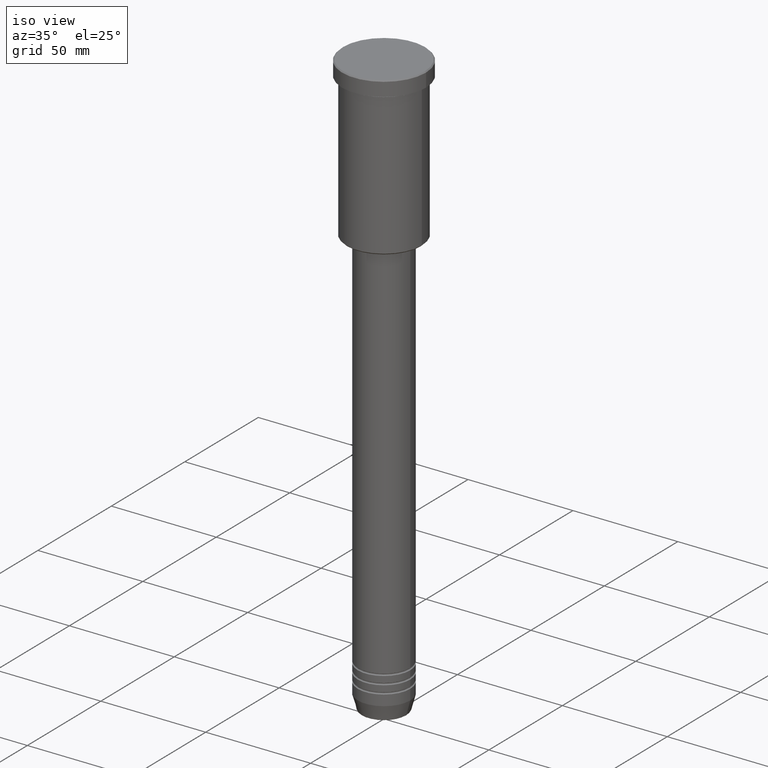
[diagram: clean part render]
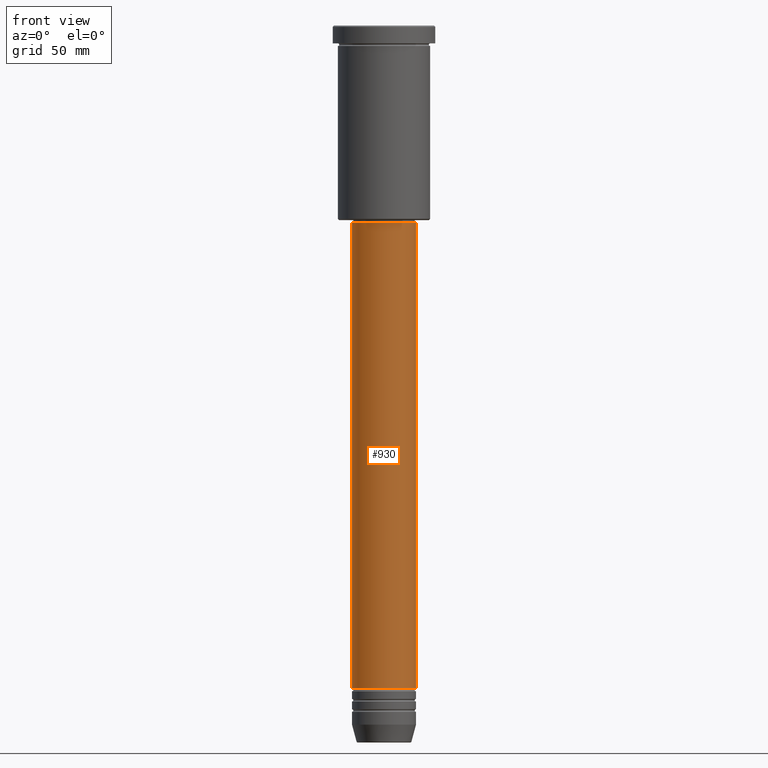
[diagram: tour spotlight — one face highlighted and labeled with its STEP entity id]
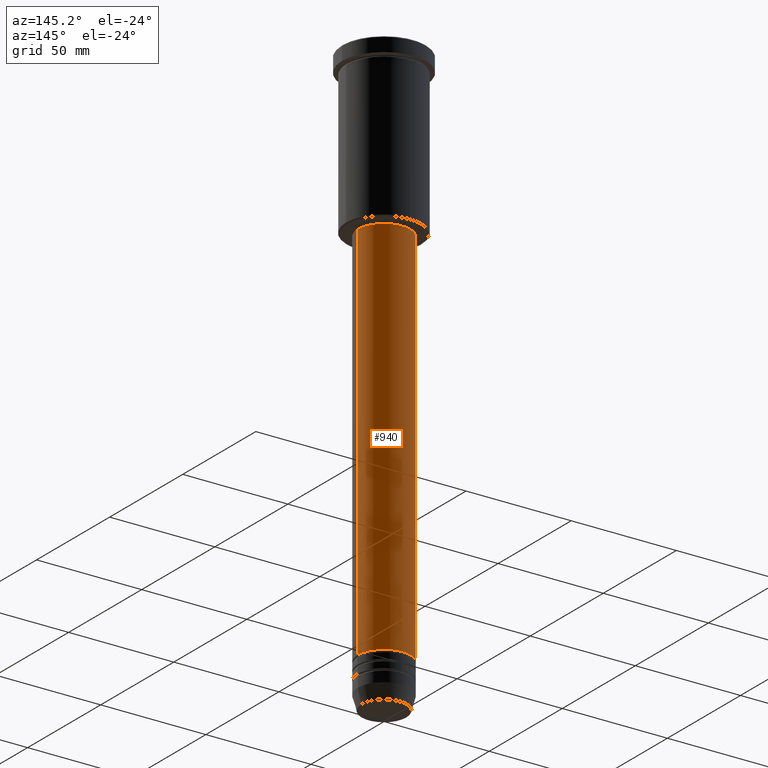
[diagram: tour spotlight — one face highlighted and labeled with its STEP entity id]
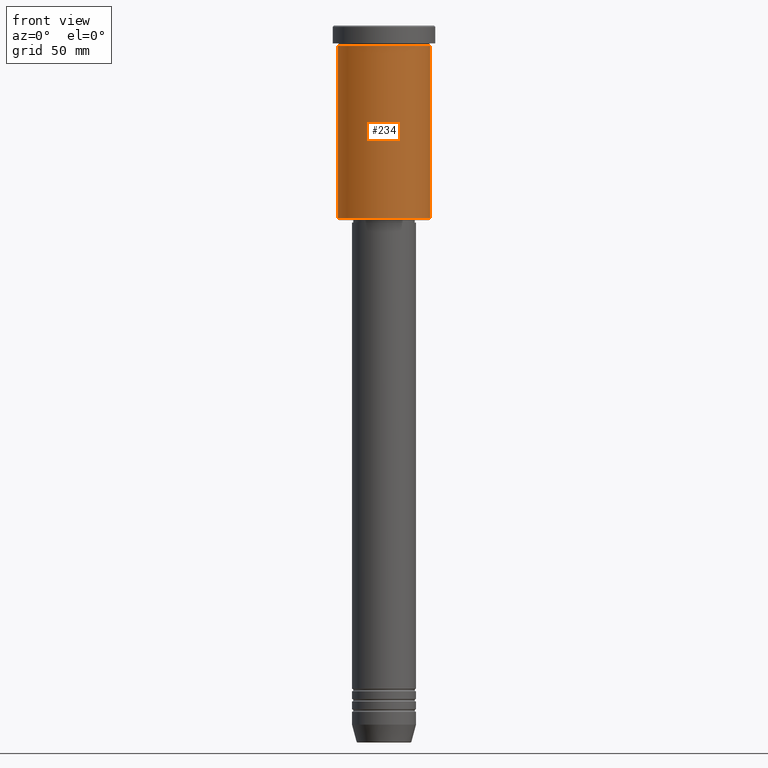
[diagram: tour spotlight — one face highlighted and labeled with its STEP entity id]
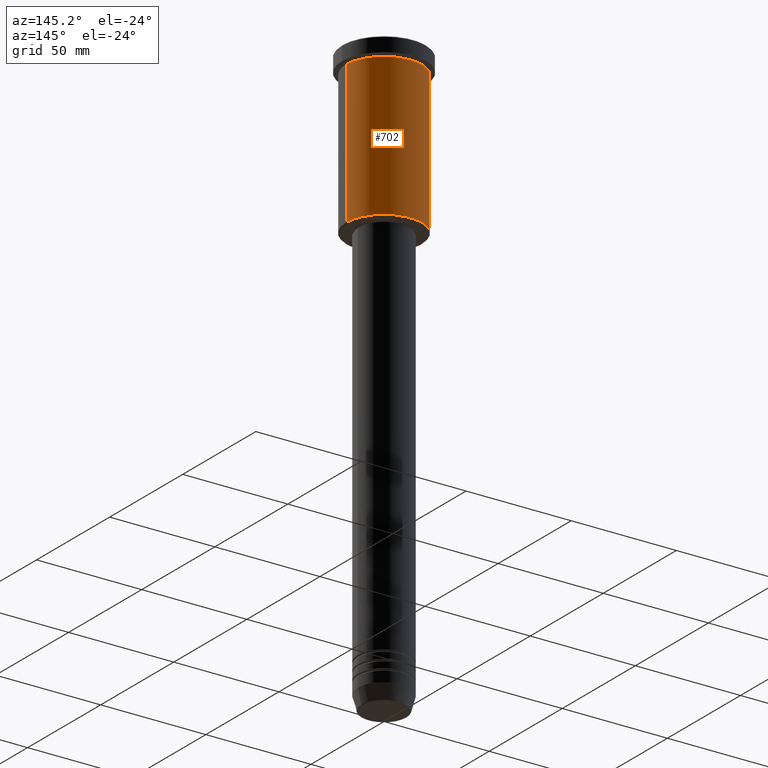
[diagram: tour spotlight — one face highlighted and labeled with its STEP entity id]
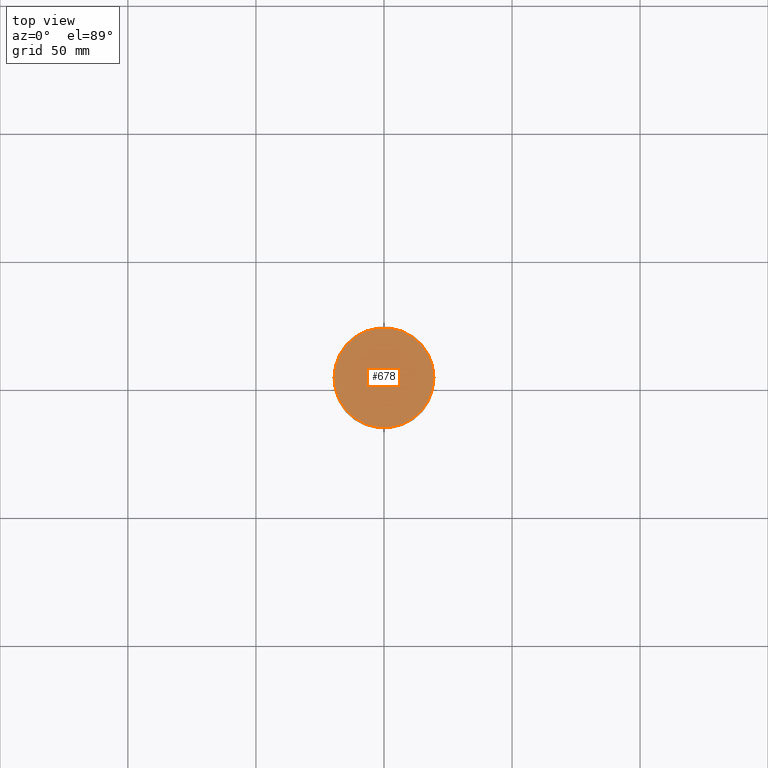
[diagram: tour spotlight — one face highlighted and labeled with its STEP entity id]
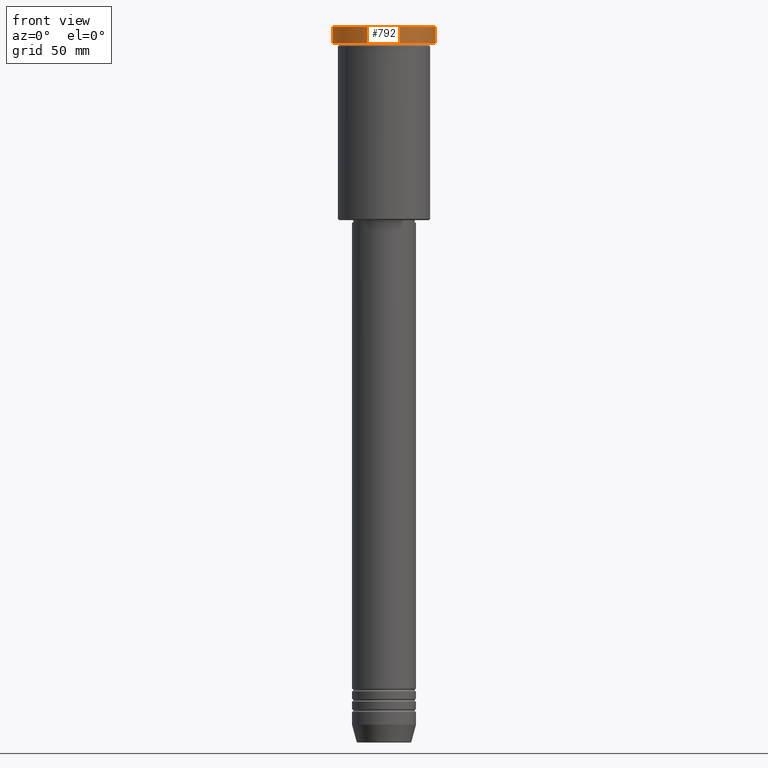
[diagram: tour spotlight — one face highlighted and labeled with its STEP entity id]
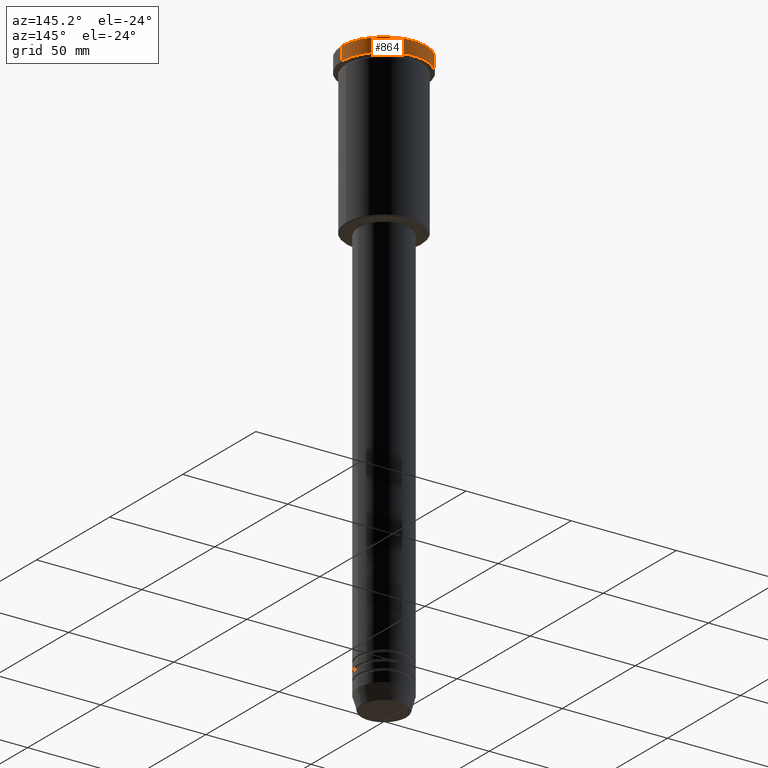
[diagram: tour spotlight — one face highlighted and labeled with its STEP entity id]
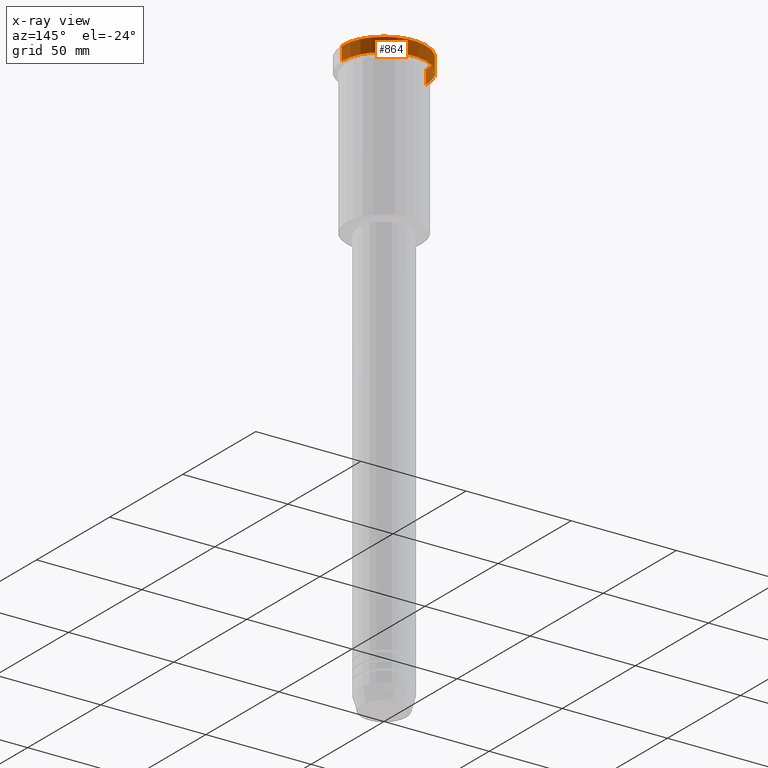
[diagram: x-ray of the same camera — body ghosted, this tour face saturated]
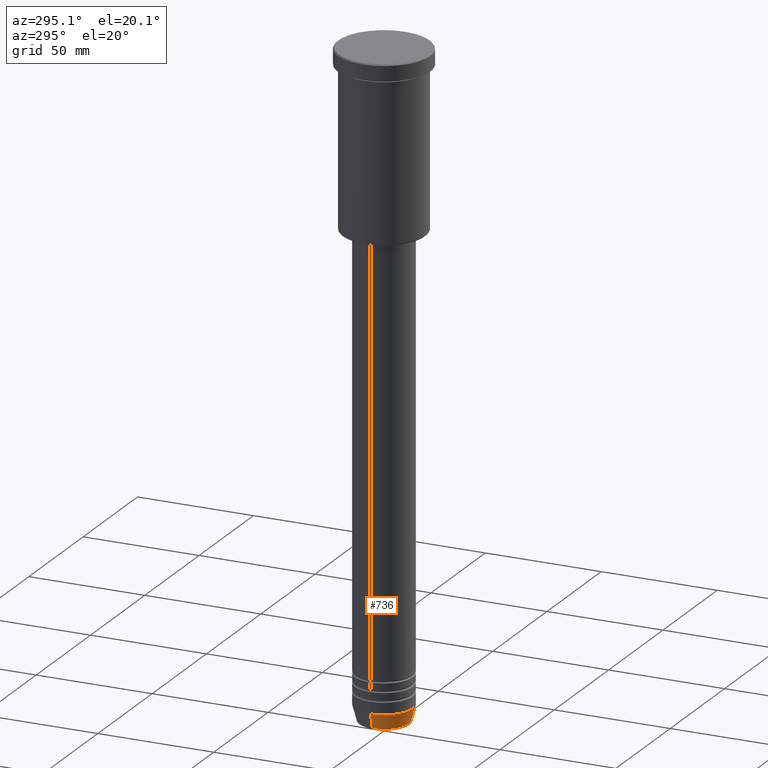
[diagram: tour spotlight — one face highlighted and labeled with its STEP entity id]
A machine part: a face-by-face anatomy tour. The part has 43 B-rep faces; the first image is the clean iso view, then the 8 largest visible faces are spotlighted one at a time (largest first), each with its STEP entity span.

Face 1 — front view, entity #930. In plain terms, the highlighted cylindrical surface (edge-blend (fillet) strip) has radius 12.5 mm, axis along (-0, -0, 1).
Definition (entity closure, byte-faithful):
#9 = DIRECTION ( 'NONE',  ( -0.000000000000000000, -0.000000000000000000, 1.000000000000000000 ) ) ;
#16 = VERTEX_POINT ( 'NONE', #72 ) ;
#55 = EDGE_CURVE ( 'NONE', #16, #1054, #1085, .T. ) ;
#72 = CARTESIAN_POINT ( 'NONE',  ( -12.50000000000000000, 1.530808498934191521E-15, -77.00000000000001421 ) ) ;
#89 = ORIENTED_EDGE ( 'NONE', *, *, #605, .T. ) ;
#116 = VECTOR ( 'NONE', #902, 1000.000000000000000 ) ;
#180 = CARTESIAN_POINT ( 'NONE',  ( 12.50000000000000000, 0.000000000000000000, 0.000000000000000000 ) ) ;
#183 = CARTESIAN_POINT ( 'NONE',  ( 0.000000000000000000, 0.000000000000000000, 0.000000000000000000 ) ) ;
#257 = EDGE_CURVE ( 'NONE', #1037, #16, #1000, .T. ) ;
#267 = DIRECTION ( 'NONE',  ( -0.000000000000000000, -0.000000000000000000, 1.000000000000000000 ) ) ;
#281 = ORIENTED_EDGE ( 'NONE', *, *, #257, .F. ) ;
#293 = EDGE_CURVE ( 'NONE', #938, #1054, #458, .T. ) ;
#356 = DIRECTION ( 'NONE',  ( 1.000000000000000000, 0.000000000000000000, 0.000000000000000000 ) ) ;
#377 = CARTESIAN_POINT ( 'NONE',  ( 0.000000000000000000, 0.000000000000000000, -259.0000000000000000 ) ) ;
#417 = DIRECTION ( 'NONE',  ( -0.000000000000000000, -0.000000000000000000, 1.000000000000000000 ) ) ;
#458 = LINE ( 'NONE', #180, #116 ) ;
#504 = CARTESIAN_POINT ( 'NONE',  ( 12.50000000000000000, 0.000000000000000000, -77.00000000000001421 ) ) ;
#530 = CARTESIAN_POINT ( 'NONE',  ( -12.50000000000000000, 1.530808498934191521E-15, -259.0000000000000000 ) ) ;
#600 = CIRCLE ( 'NONE', #1088, 12.50000000000000000 ) ;
#605 = EDGE_CURVE ( 'NONE', #1037, #938, #600, .T. ) ;
#615 = VECTOR ( 'NONE', #267, 1000.000000000000000 ) ;
#632 = CYLINDRICAL_SURFACE ( 'NONE', #854, 12.50000000000000000 ) ;
#739 = DIRECTION ( 'NONE',  ( 1.000000000000000000, 0.000000000000000000, 0.000000000000000000 ) ) ;
#833 = AXIS2_PLACEMENT_3D ( 'NONE', #976, #417, #739 ) ;
#854 = AXIS2_PLACEMENT_3D ( 'NONE', #183, #913, #1015 ) ;
#896 = ORIENTED_EDGE ( 'NONE', *, *, #55, .F. ) ;
#902 = DIRECTION ( 'NONE',  ( -0.000000000000000000, -0.000000000000000000, 1.000000000000000000 ) ) ;
#913 = DIRECTION ( 'NONE',  ( -0.000000000000000000, -0.000000000000000000, 1.000000000000000000 ) ) ;
#930 = ADVANCED_FACE ( 'NONE', ( #1007 ), #632, .T. ) ;
#938 = VERTEX_POINT ( 'NONE', #954 ) ;
#954 = CARTESIAN_POINT ( 'NONE',  ( 12.50000000000000000, 0.000000000000000000, -259.0000000000000000 ) ) ;
#976 = CARTESIAN_POINT ( 'NONE',  ( 0.000000000000000000, 0.000000000000000000, -77.00000000000001421 ) ) ;
#1000 = LINE ( 'NONE', #1181, #615 ) ;
#1007 = FACE_OUTER_BOUND ( 'NONE', #1119, .T. ) ;
#1015 = DIRECTION ( 'NONE',  ( 1.000000000000000000, 0.000000000000000000, 0.000000000000000000 ) ) ;
#1037 = VERTEX_POINT ( 'NONE', #530 ) ;
#1054 = VERTEX_POINT ( 'NONE', #504 ) ;
#1085 = CIRCLE ( 'NONE', #833, 12.50000000000000000 ) ;
#1088 = AXIS2_PLACEMENT_3D ( 'NONE', #377, #9, #356 ) ;
#1101 = ORIENTED_EDGE ( 'NONE', *, *, #293, .T. ) ;
#1119 = EDGE_LOOP ( 'NONE', ( #281, #89, #1101, #896 ) ) ;
#1181 = CARTESIAN_POINT ( 'NONE',  ( -12.50000000000000000, 1.530808498934191521E-15, 0.000000000000000000 ) ) ;

Face 2 — auxiliary view, entity #940. In plain terms, the highlighted cylindrical surface (edge-blend (fillet) strip) has radius 12.5 mm, axis along (-0, -0, 1).
Definition (entity closure, byte-faithful):
#16 = VERTEX_POINT ( 'NONE', #72 ) ;
#39 = DIRECTION ( 'NONE',  ( -0.000000000000000000, -0.000000000000000000, 1.000000000000000000 ) ) ;
#46 = EDGE_CURVE ( 'NONE', #938, #1037, #484, .T. ) ;
#68 = DIRECTION ( 'NONE',  ( -0.000000000000000000, -0.000000000000000000, 1.000000000000000000 ) ) ;
#72 = CARTESIAN_POINT ( 'NONE',  ( -12.50000000000000000, 1.530808498934191521E-15, -77.00000000000001421 ) ) ;
#99 = DIRECTION ( 'NONE',  ( 1.000000000000000000, 0.000000000000000000, 0.000000000000000000 ) ) ;
#116 = VECTOR ( 'NONE', #902, 1000.000000000000000 ) ;
#123 = CYLINDRICAL_SURFACE ( 'NONE', #233, 12.50000000000000000 ) ;
#137 = FACE_OUTER_BOUND ( 'NONE', #935, .T. ) ;
#180 = CARTESIAN_POINT ( 'NONE',  ( 12.50000000000000000, 0.000000000000000000, 0.000000000000000000 ) ) ;
#233 = AXIS2_PLACEMENT_3D ( 'NONE', #1139, #39, #1042 ) ;
#257 = EDGE_CURVE ( 'NONE', #1037, #16, #1000, .T. ) ;
#267 = DIRECTION ( 'NONE',  ( -0.000000000000000000, -0.000000000000000000, 1.000000000000000000 ) ) ;
#271 = ORIENTED_EDGE ( 'NONE', *, *, #257, .T. ) ;
#293 = EDGE_CURVE ( 'NONE', #938, #1054, #458, .T. ) ;
#312 = ORIENTED_EDGE ( 'NONE', *, *, #46, .T. ) ;
#454 = CARTESIAN_POINT ( 'NONE',  ( 0.000000000000000000, 0.000000000000000000, -77.00000000000001421 ) ) ;
#458 = LINE ( 'NONE', #180, #116 ) ;
#484 = CIRCLE ( 'NONE', #810, 12.50000000000000000 ) ;
#504 = CARTESIAN_POINT ( 'NONE',  ( 12.50000000000000000, 0.000000000000000000, -77.00000000000001421 ) ) ;
#530 = CARTESIAN_POINT ( 'NONE',  ( -12.50000000000000000, 1.530808498934191521E-15, -259.0000000000000000 ) ) ;
#592 = EDGE_CURVE ( 'NONE', #1054, #16, #658, .T. ) ;
#601 = DIRECTION ( 'NONE',  ( 1.000000000000000000, 0.000000000000000000, 0.000000000000000000 ) ) ;
#615 = VECTOR ( 'NONE', #267, 1000.000000000000000 ) ;
#658 = CIRCLE ( 'NONE', #1180, 12.50000000000000000 ) ;
#810 = AXIS2_PLACEMENT_3D ( 'NONE', #1065, #68, #601 ) ;
#902 = DIRECTION ( 'NONE',  ( -0.000000000000000000, -0.000000000000000000, 1.000000000000000000 ) ) ;
#928 = ORIENTED_EDGE ( 'NONE', *, *, #293, .F. ) ;
#935 = EDGE_LOOP ( 'NONE', ( #312, #271, #1059, #928 ) ) ;
#938 = VERTEX_POINT ( 'NONE', #954 ) ;
#940 = ADVANCED_FACE ( 'NONE', ( #137 ), #123, .T. ) ;
#954 = CARTESIAN_POINT ( 'NONE',  ( 12.50000000000000000, 0.000000000000000000, -259.0000000000000000 ) ) ;
#1000 = LINE ( 'NONE', #1181, #615 ) ;
#1022 = DIRECTION ( 'NONE',  ( -0.000000000000000000, -0.000000000000000000, 1.000000000000000000 ) ) ;
#1037 = VERTEX_POINT ( 'NONE', #530 ) ;
#1042 = DIRECTION ( 'NONE',  ( 1.000000000000000000, 0.000000000000000000, 0.000000000000000000 ) ) ;
#1054 = VERTEX_POINT ( 'NONE', #504 ) ;
#1059 = ORIENTED_EDGE ( 'NONE', *, *, #592, .F. ) ;
#1065 = CARTESIAN_POINT ( 'NONE',  ( 0.000000000000000000, 0.000000000000000000, -259.0000000000000000 ) ) ;
#1139 = CARTESIAN_POINT ( 'NONE',  ( 0.000000000000000000, 0.000000000000000000, 0.000000000000000000 ) ) ;
#1180 = AXIS2_PLACEMENT_3D ( 'NONE', #454, #1022, #99 ) ;
#1181 = CARTESIAN_POINT ( 'NONE',  ( -12.50000000000000000, 1.530808498934191521E-15, 0.000000000000000000 ) ) ;

Face 3 — front view, entity #234. In plain terms, the highlighted cylindrical surface (partial cylindrical patch) has radius 18 mm, axis along (-0, -0, 1).
Definition (entity closure, byte-faithful):
#27 = DIRECTION ( 'NONE',  ( -0.000000000000000000, -0.000000000000000000, 1.000000000000000000 ) ) ;
#41 = ORIENTED_EDGE ( 'NONE', *, *, #122, .F. ) ;
#52 = LINE ( 'NONE', #651, #1102 ) ;
#122 = EDGE_CURVE ( 'NONE', #1121, #653, #730, .T. ) ;
#143 = CYLINDRICAL_SURFACE ( 'NONE', #635, 18.00000000000000000 ) ;
#209 = EDGE_CURVE ( 'NONE', #829, #518, #52, .T. ) ;
#234 = ADVANCED_FACE ( 'NONE', ( #959 ), #143, .T. ) ;
#238 = CIRCLE ( 'NONE', #472, 18.00000000000000000 ) ;
#289 = DIRECTION ( 'NONE',  ( -0.000000000000000000, -0.000000000000000000, 1.000000000000000000 ) ) ;
#292 = DIRECTION ( 'NONE',  ( 1.000000000000000000, 0.000000000000000000, 0.000000000000000000 ) ) ;
#310 = AXIS2_PLACEMENT_3D ( 'NONE', #743, #936, #292 ) ;
#418 = DIRECTION ( 'NONE',  ( -0.000000000000000000, -0.000000000000000000, 1.000000000000000000 ) ) ;
#441 = ORIENTED_EDGE ( 'NONE', *, *, #577, .F. ) ;
#451 = DIRECTION ( 'NONE',  ( 1.000000000000000000, 0.000000000000000000, 0.000000000000000000 ) ) ;
#472 = AXIS2_PLACEMENT_3D ( 'NONE', #519, #418, #996 ) ;
#497 = CARTESIAN_POINT ( 'NONE',  ( 0.000000000000000000, 0.000000000000000000, 0.000000000000000000 ) ) ;
#518 = VERTEX_POINT ( 'NONE', #754 ) ;
#519 = CARTESIAN_POINT ( 'NONE',  ( 0.000000000000000000, 0.000000000000000000, -75.50000000000002842 ) ) ;
#577 = EDGE_CURVE ( 'NONE', #653, #518, #796, .T. ) ;
#635 = AXIS2_PLACEMENT_3D ( 'NONE', #497, #289, #451 ) ;
#646 = ORIENTED_EDGE ( 'NONE', *, *, #788, .T. ) ;
#651 = CARTESIAN_POINT ( 'NONE',  ( 18.00000000000000000, 0.000000000000000000, 0.000000000000000000 ) ) ;
#653 = VERTEX_POINT ( 'NONE', #862 ) ;
#655 = VECTOR ( 'NONE', #27, 1000.000000000000000 ) ;
#675 = DIRECTION ( 'NONE',  ( -0.000000000000000000, -0.000000000000000000, 1.000000000000000000 ) ) ;
#704 = CARTESIAN_POINT ( 'NONE',  ( -18.00000000000000000, 2.204364238465235428E-15, -75.50000000000002842 ) ) ;
#717 = CARTESIAN_POINT ( 'NONE',  ( 18.00000000000000000, 0.000000000000000000, -75.50000000000002842 ) ) ;
#730 = LINE ( 'NONE', #834, #655 ) ;
#743 = CARTESIAN_POINT ( 'NONE',  ( 0.000000000000000000, 0.000000000000000000, -7.999999999999996447 ) ) ;
#754 = CARTESIAN_POINT ( 'NONE',  ( 18.00000000000000000, 0.000000000000000000, -7.999999999999996447 ) ) ;
#788 = EDGE_CURVE ( 'NONE', #1121, #829, #238, .T. ) ;
#796 = CIRCLE ( 'NONE', #310, 18.00000000000000000 ) ;
#829 = VERTEX_POINT ( 'NONE', #717 ) ;
#834 = CARTESIAN_POINT ( 'NONE',  ( -18.00000000000000000, 2.204364238465235428E-15, 0.000000000000000000 ) ) ;
#840 = ORIENTED_EDGE ( 'NONE', *, *, #209, .T. ) ;
#862 = CARTESIAN_POINT ( 'NONE',  ( -18.00000000000000000, 2.204364238465235428E-15, -7.999999999999996447 ) ) ;
#936 = DIRECTION ( 'NONE',  ( -0.000000000000000000, -0.000000000000000000, 1.000000000000000000 ) ) ;
#959 = FACE_OUTER_BOUND ( 'NONE', #1004, .T. ) ;
#996 = DIRECTION ( 'NONE',  ( -1.000000000000000000, 0.000000000000000000, 0.000000000000000000 ) ) ;
#1004 = EDGE_LOOP ( 'NONE', ( #41, #646, #840, #441 ) ) ;
#1102 = VECTOR ( 'NONE', #675, 1000.000000000000000 ) ;
#1121 = VERTEX_POINT ( 'NONE', #704 ) ;

Face 4 — auxiliary view, entity #702. In plain terms, the highlighted cylindrical surface (partial cylindrical patch) has radius 18 mm, axis along (-0, -0, 1).
Definition (entity closure, byte-faithful):
#27 = DIRECTION ( 'NONE',  ( -0.000000000000000000, -0.000000000000000000, 1.000000000000000000 ) ) ;
#52 = LINE ( 'NONE', #651, #1102 ) ;
#122 = EDGE_CURVE ( 'NONE', #1121, #653, #730, .T. ) ;
#209 = EDGE_CURVE ( 'NONE', #829, #518, #52, .T. ) ;
#223 = EDGE_LOOP ( 'NONE', ( #611, #756, #764, #252 ) ) ;
#252 = ORIENTED_EDGE ( 'NONE', *, *, #209, .F. ) ;
#301 = FACE_OUTER_BOUND ( 'NONE', #223, .T. ) ;
#311 = CARTESIAN_POINT ( 'NONE',  ( 0.000000000000000000, 0.000000000000000000, 0.000000000000000000 ) ) ;
#332 = CARTESIAN_POINT ( 'NONE',  ( 0.000000000000000000, 0.000000000000000000, -75.50000000000002842 ) ) ;
#363 = DIRECTION ( 'NONE',  ( -0.000000000000000000, -0.000000000000000000, 1.000000000000000000 ) ) ;
#398 = CIRCLE ( 'NONE', #865, 18.00000000000000000 ) ;
#403 = CIRCLE ( 'NONE', #505, 18.00000000000000000 ) ;
#469 = DIRECTION ( 'NONE',  ( 1.000000000000000000, 0.000000000000000000, 0.000000000000000000 ) ) ;
#505 = AXIS2_PLACEMENT_3D ( 'NONE', #1108, #363, #469 ) ;
#518 = VERTEX_POINT ( 'NONE', #754 ) ;
#559 = EDGE_CURVE ( 'NONE', #518, #653, #403, .T. ) ;
#611 = ORIENTED_EDGE ( 'NONE', *, *, #1028, .T. ) ;
#613 = DIRECTION ( 'NONE',  ( -1.000000000000000000, 0.000000000000000000, 0.000000000000000000 ) ) ;
#651 = CARTESIAN_POINT ( 'NONE',  ( 18.00000000000000000, 0.000000000000000000, 0.000000000000000000 ) ) ;
#653 = VERTEX_POINT ( 'NONE', #862 ) ;
#655 = VECTOR ( 'NONE', #27, 1000.000000000000000 ) ;
#675 = DIRECTION ( 'NONE',  ( -0.000000000000000000, -0.000000000000000000, 1.000000000000000000 ) ) ;
#702 = ADVANCED_FACE ( 'NONE', ( #301 ), #961, .T. ) ;
#704 = CARTESIAN_POINT ( 'NONE',  ( -18.00000000000000000, 2.204364238465235428E-15, -75.50000000000002842 ) ) ;
#717 = CARTESIAN_POINT ( 'NONE',  ( 18.00000000000000000, 0.000000000000000000, -75.50000000000002842 ) ) ;
#730 = LINE ( 'NONE', #834, #655 ) ;
#754 = CARTESIAN_POINT ( 'NONE',  ( 18.00000000000000000, 0.000000000000000000, -7.999999999999996447 ) ) ;
#756 = ORIENTED_EDGE ( 'NONE', *, *, #122, .T. ) ;
#764 = ORIENTED_EDGE ( 'NONE', *, *, #559, .F. ) ;
#814 = AXIS2_PLACEMENT_3D ( 'NONE', #311, #1038, #868 ) ;
#829 = VERTEX_POINT ( 'NONE', #717 ) ;
#834 = CARTESIAN_POINT ( 'NONE',  ( -18.00000000000000000, 2.204364238465235428E-15, 0.000000000000000000 ) ) ;
#862 = CARTESIAN_POINT ( 'NONE',  ( -18.00000000000000000, 2.204364238465235428E-15, -7.999999999999996447 ) ) ;
#865 = AXIS2_PLACEMENT_3D ( 'NONE', #332, #1081, #613 ) ;
#868 = DIRECTION ( 'NONE',  ( 1.000000000000000000, 0.000000000000000000, 0.000000000000000000 ) ) ;
#961 = CYLINDRICAL_SURFACE ( 'NONE', #814, 18.00000000000000000 ) ;
#1028 = EDGE_CURVE ( 'NONE', #829, #1121, #398, .T. ) ;
#1038 = DIRECTION ( 'NONE',  ( -0.000000000000000000, -0.000000000000000000, 1.000000000000000000 ) ) ;
#1081 = DIRECTION ( 'NONE',  ( -0.000000000000000000, -0.000000000000000000, 1.000000000000000000 ) ) ;
#1102 = VECTOR ( 'NONE', #675, 1000.000000000000000 ) ;
#1108 = CARTESIAN_POINT ( 'NONE',  ( 0.000000000000000000, 0.000000000000000000, -7.999999999999996447 ) ) ;
#1121 = VERTEX_POINT ( 'NONE', #704 ) ;

Face 5 — top view, entity #678. In plain terms, the highlighted planar face has unit normal (0, -0, 1).
Definition (entity closure, byte-faithful):
#51 = ORIENTED_EDGE ( 'NONE', *, *, #990, .T. ) ;
#109 = AXIS2_PLACEMENT_3D ( 'NONE', #326, #415, #1153 ) ;
#176 = CARTESIAN_POINT ( 'NONE',  ( 0.000000000000000000, 0.000000000000000000, 0.000000000000000000 ) ) ;
#242 = CARTESIAN_POINT ( 'NONE',  ( -19.50000000000004619, 0.000000000000000000, 0.000000000000000000 ) ) ;
#264 = VERTEX_POINT ( 'NONE', #345 ) ;
#278 = EDGE_CURVE ( 'NONE', #264, #1107, #364, .T. ) ;
#326 = CARTESIAN_POINT ( 'NONE',  ( 0.000000000000000000, 0.000000000000000000, 0.000000000000000000 ) ) ;
#343 = ORIENTED_EDGE ( 'NONE', *, *, #278, .T. ) ;
#345 = CARTESIAN_POINT ( 'NONE',  ( 19.50000000000004619, 2.418677428316025487E-15, 0.000000000000000000 ) ) ;
#364 = CIRCLE ( 'NONE', #546, 19.50000000000004619 ) ;
#393 = DIRECTION ( 'NONE',  ( 0.000000000000000000, -0.000000000000000000, 1.000000000000000000 ) ) ;
#415 = DIRECTION ( 'NONE',  ( -0.000000000000000000, -0.000000000000000000, 1.000000000000000000 ) ) ;
#506 = CARTESIAN_POINT ( 'NONE',  ( 0.000000000000000000, 0.000000000000000000, 0.000000000000000000 ) ) ;
#546 = AXIS2_PLACEMENT_3D ( 'NONE', #176, #555, #817 ) ;
#555 = DIRECTION ( 'NONE',  ( -0.000000000000000000, -0.000000000000000000, 1.000000000000000000 ) ) ;
#562 = EDGE_LOOP ( 'NONE', ( #51, #343 ) ) ;
#650 = CIRCLE ( 'NONE', #109, 19.50000000000004619 ) ;
#666 = FACE_OUTER_BOUND ( 'NONE', #562, .T. ) ;
#677 = PLANE ( 'NONE',  #718 ) ;
#678 = ADVANCED_FACE ( 'NONE', ( #666 ), #677, .T. ) ;
#718 = AXIS2_PLACEMENT_3D ( 'NONE', #506, #393, #1130 ) ;
#817 = DIRECTION ( 'NONE',  ( 1.000000000000000000, 0.000000000000000000, 0.000000000000000000 ) ) ;
#990 = EDGE_CURVE ( 'NONE', #1107, #264, #650, .T. ) ;
#1107 = VERTEX_POINT ( 'NONE', #242 ) ;
#1130 = DIRECTION ( 'NONE',  ( 1.000000000000000000, 0.000000000000000000, 0.000000000000000000 ) ) ;
#1153 = DIRECTION ( 'NONE',  ( 1.000000000000000000, 0.000000000000000000, 0.000000000000000000 ) ) ;

Face 6 — front view, entity #792. In plain terms, the highlighted cylindrical surface (partial cylindrical patch) has radius 20 mm, axis along (-0, -0, 1).
Definition (entity closure, byte-faithful):
#42 = DIRECTION ( 'NONE',  ( 1.000000000000000000, 0.000000000000000000, 0.000000000000000000 ) ) ;
#56 = DIRECTION ( 'NONE',  ( 0.000000000000000000, 0.000000000000000000, -1.000000000000000000 ) ) ;
#69 = EDGE_CURVE ( 'NONE', #193, #539, #625, .T. ) ;
#88 = CARTESIAN_POINT ( 'NONE',  ( 0.000000000000000000, 0.000000000000000000, 0.000000000000000000 ) ) ;
#94 = EDGE_LOOP ( 'NONE', ( #557, #516, #483, #636 ) ) ;
#118 = CARTESIAN_POINT ( 'NONE',  ( -20.00000000000000000, 2.449293598294706513E-15, 0.000000000000000000 ) ) ;
#193 = VERTEX_POINT ( 'NONE', #583 ) ;
#265 = CARTESIAN_POINT ( 'NONE',  ( -20.00000000000000000, 2.449293598294706513E-15, -0.4999999999999692468 ) ) ;
#296 = CIRCLE ( 'NONE', #950, 20.00000000000000000 ) ;
#330 = DIRECTION ( 'NONE',  ( -0.000000000000000000, -0.000000000000000000, 1.000000000000000000 ) ) ;
#344 = AXIS2_PLACEMENT_3D ( 'NONE', #626, #467, #1106 ) ;
#404 = EDGE_CURVE ( 'NONE', #1093, #809, #500, .T. ) ;
#410 = CARTESIAN_POINT ( 'NONE',  ( 20.00000000000000000, 0.000000000000000000, -0.4999999999999692468 ) ) ;
#413 = CARTESIAN_POINT ( 'NONE',  ( 20.00000000000000000, 0.000000000000000000, 0.000000000000000000 ) ) ;
#459 = DIRECTION ( 'NONE',  ( -0.000000000000000000, -0.000000000000000000, 1.000000000000000000 ) ) ;
#467 = DIRECTION ( 'NONE',  ( -0.000000000000000000, -0.000000000000000000, 1.000000000000000000 ) ) ;
#483 = ORIENTED_EDGE ( 'NONE', *, *, #404, .T. ) ;
#494 = CARTESIAN_POINT ( 'NONE',  ( 0.000000000000000000, 0.000000000000000000, -0.4999999999999692468 ) ) ;
#500 = LINE ( 'NONE', #413, #760 ) ;
#516 = ORIENTED_EDGE ( 'NONE', *, *, #897, .T. ) ;
#539 = VERTEX_POINT ( 'NONE', #265 ) ;
#557 = ORIENTED_EDGE ( 'NONE', *, *, #69, .F. ) ;
#583 = CARTESIAN_POINT ( 'NONE',  ( -20.00000000000000000, 2.449293598294706513E-15, -6.999999999999995559 ) ) ;
#620 = CYLINDRICAL_SURFACE ( 'NONE', #914, 20.00000000000000000 ) ;
#625 = LINE ( 'NONE', #118, #758 ) ;
#626 = CARTESIAN_POINT ( 'NONE',  ( 0.000000000000000000, 0.000000000000000000, -6.999999999999995559 ) ) ;
#636 = ORIENTED_EDGE ( 'NONE', *, *, #712, .T. ) ;
#707 = DIRECTION ( 'NONE',  ( 1.000000000000000000, 0.000000000000000000, 0.000000000000000000 ) ) ;
#712 = EDGE_CURVE ( 'NONE', #809, #539, #296, .T. ) ;
#758 = VECTOR ( 'NONE', #459, 1000.000000000000000 ) ;
#760 = VECTOR ( 'NONE', #330, 1000.000000000000000 ) ;
#792 = ADVANCED_FACE ( 'NONE', ( #805 ), #620, .T. ) ;
#795 = CARTESIAN_POINT ( 'NONE',  ( 20.00000000000000000, 0.000000000000000000, -6.999999999999995559 ) ) ;
#805 = FACE_OUTER_BOUND ( 'NONE', #94, .T. ) ;
#809 = VERTEX_POINT ( 'NONE', #410 ) ;
#874 = CIRCLE ( 'NONE', #344, 20.00000000000000000 ) ;
#897 = EDGE_CURVE ( 'NONE', #193, #1093, #874, .T. ) ;
#914 = AXIS2_PLACEMENT_3D ( 'NONE', #88, #977, #707 ) ;
#950 = AXIS2_PLACEMENT_3D ( 'NONE', #494, #56, #42 ) ;
#977 = DIRECTION ( 'NONE',  ( -0.000000000000000000, -0.000000000000000000, 1.000000000000000000 ) ) ;
#1093 = VERTEX_POINT ( 'NONE', #795 ) ;
#1106 = DIRECTION ( 'NONE',  ( 1.000000000000000000, 0.000000000000000000, 0.000000000000000000 ) ) ;

Face 7 — auxiliary view, entity #864. An x-ray twin of the same camera follows (body ghosted, this face saturated) — the face is partly hidden behind the body. In plain terms, the highlighted cylindrical surface (partial cylindrical patch) has radius 20 mm, axis along (-0, -0, 1).
Definition (entity closure, byte-faithful):
#48 = DIRECTION ( 'NONE',  ( -0.000000000000000000, -0.000000000000000000, 1.000000000000000000 ) ) ;
#69 = EDGE_CURVE ( 'NONE', #193, #539, #625, .T. ) ;
#118 = CARTESIAN_POINT ( 'NONE',  ( -20.00000000000000000, 2.449293598294706513E-15, 0.000000000000000000 ) ) ;
#132 = AXIS2_PLACEMENT_3D ( 'NONE', #569, #1100, #1018 ) ;
#156 = EDGE_CURVE ( 'NONE', #1093, #193, #255, .T. ) ;
#189 = FACE_OUTER_BOUND ( 'NONE', #538, .T. ) ;
#193 = VERTEX_POINT ( 'NONE', #583 ) ;
#255 = CIRCLE ( 'NONE', #991, 20.00000000000000000 ) ;
#265 = CARTESIAN_POINT ( 'NONE',  ( -20.00000000000000000, 2.449293598294706513E-15, -0.4999999999999692468 ) ) ;
#270 = CYLINDRICAL_SURFACE ( 'NONE', #744, 20.00000000000000000 ) ;
#330 = DIRECTION ( 'NONE',  ( -0.000000000000000000, -0.000000000000000000, 1.000000000000000000 ) ) ;
#404 = EDGE_CURVE ( 'NONE', #1093, #809, #500, .T. ) ;
#410 = CARTESIAN_POINT ( 'NONE',  ( 20.00000000000000000, 0.000000000000000000, -0.4999999999999692468 ) ) ;
#413 = CARTESIAN_POINT ( 'NONE',  ( 20.00000000000000000, 0.000000000000000000, 0.000000000000000000 ) ) ;
#459 = DIRECTION ( 'NONE',  ( -0.000000000000000000, -0.000000000000000000, 1.000000000000000000 ) ) ;
#500 = LINE ( 'NONE', #413, #760 ) ;
#538 = EDGE_LOOP ( 'NONE', ( #826, #745, #947, #802 ) ) ;
#539 = VERTEX_POINT ( 'NONE', #265 ) ;
#569 = CARTESIAN_POINT ( 'NONE',  ( 0.000000000000000000, 0.000000000000000000, -0.4999999999999692468 ) ) ;
#583 = CARTESIAN_POINT ( 'NONE',  ( -20.00000000000000000, 2.449293598294706513E-15, -6.999999999999995559 ) ) ;
#617 = EDGE_CURVE ( 'NONE', #539, #809, #1144, .T. ) ;
#625 = LINE ( 'NONE', #118, #758 ) ;
#638 = CARTESIAN_POINT ( 'NONE',  ( 0.000000000000000000, 0.000000000000000000, 0.000000000000000000 ) ) ;
#669 = DIRECTION ( 'NONE',  ( 1.000000000000000000, 0.000000000000000000, 0.000000000000000000 ) ) ;
#744 = AXIS2_PLACEMENT_3D ( 'NONE', #638, #1118, #1021 ) ;
#745 = ORIENTED_EDGE ( 'NONE', *, *, #69, .T. ) ;
#758 = VECTOR ( 'NONE', #459, 1000.000000000000000 ) ;
#760 = VECTOR ( 'NONE', #330, 1000.000000000000000 ) ;
#795 = CARTESIAN_POINT ( 'NONE',  ( 20.00000000000000000, 0.000000000000000000, -6.999999999999995559 ) ) ;
#802 = ORIENTED_EDGE ( 'NONE', *, *, #404, .F. ) ;
#809 = VERTEX_POINT ( 'NONE', #410 ) ;
#826 = ORIENTED_EDGE ( 'NONE', *, *, #156, .T. ) ;
#864 = ADVANCED_FACE ( 'NONE', ( #189 ), #270, .T. ) ;
#947 = ORIENTED_EDGE ( 'NONE', *, *, #617, .T. ) ;
#991 = AXIS2_PLACEMENT_3D ( 'NONE', #1025, #48, #669 ) ;
#1018 = DIRECTION ( 'NONE',  ( 1.000000000000000000, 0.000000000000000000, 0.000000000000000000 ) ) ;
#1021 = DIRECTION ( 'NONE',  ( 1.000000000000000000, 0.000000000000000000, 0.000000000000000000 ) ) ;
#1025 = CARTESIAN_POINT ( 'NONE',  ( 0.000000000000000000, 0.000000000000000000, -6.999999999999995559 ) ) ;
#1093 = VERTEX_POINT ( 'NONE', #795 ) ;
#1100 = DIRECTION ( 'NONE',  ( 0.000000000000000000, 0.000000000000000000, -1.000000000000000000 ) ) ;
#1118 = DIRECTION ( 'NONE',  ( -0.000000000000000000, -0.000000000000000000, 1.000000000000000000 ) ) ;
#1144 = CIRCLE ( 'NONE', #132, 20.00000000000000000 ) ;

Face 8 — auxiliary view, entity #736. In plain terms, the highlighted conical surface has half-angle 15 deg.
Definition (entity closure, byte-faithful):
#26 = VECTOR ( 'NONE', #531, 1000.000000000000000 ) ;
#66 = CARTESIAN_POINT ( 'NONE',  ( -10.72365507213719127, 1.422038742429750516E-15, -279.6294095225512706 ) ) ;
#82 = ORIENTED_EDGE ( 'NONE', *, *, #1164, .T. ) ;
#128 = CARTESIAN_POINT ( 'NONE',  ( 0.000000000000000000, 0.000000000000000000, -273.0000000000000000 ) ) ;
#139 = DIRECTION ( 'NONE',  ( -0.000000000000000000, -0.000000000000000000, 1.000000000000000000 ) ) ;
#150 = FACE_OUTER_BOUND ( 'NONE', #709, .T. ) ;
#172 = CARTESIAN_POINT ( 'NONE',  ( 12.50000000000000000, 0.000000000000000000, -273.0000000000000000 ) ) ;
#249 = DIRECTION ( 'NONE',  ( 1.000000000000000000, 0.000000000000000000, 0.000000000000000000 ) ) ;
#357 = VERTEX_POINT ( 'NONE', #1172 ) ;
#369 = CARTESIAN_POINT ( 'NONE',  ( -12.50000000000000000, 1.530808498934191521E-15, -273.0000000000000000 ) ) ;
#372 = VERTEX_POINT ( 'NONE', #66 ) ;
#391 = AXIS2_PLACEMENT_3D ( 'NONE', #784, #409, #249 ) ;
#409 = DIRECTION ( 'NONE',  ( -0.000000000000000000, -0.000000000000000000, 1.000000000000000000 ) ) ;
#448 = CIRCLE ( 'NONE', #1125, 12.50000000000000000 ) ;
#531 = DIRECTION ( 'NONE',  ( 0.2588190451025213501, 0.000000000000000000, 0.9659258262890680902 ) ) ;
#547 = AXIS2_PLACEMENT_3D ( 'NONE', #969, #948, #944 ) ;
#574 = DIRECTION ( 'NONE',  ( 1.000000000000000000, 0.000000000000000000, 0.000000000000000000 ) ) ;
#590 = VERTEX_POINT ( 'NONE', #917 ) ;
#595 = ORIENTED_EDGE ( 'NONE', *, *, #915, .F. ) ;
#709 = EDGE_LOOP ( 'NONE', ( #595, #1178, #82, #790 ) ) ;
#720 = EDGE_CURVE ( 'NONE', #357, #590, #448, .T. ) ;
#731 = LINE ( 'NONE', #369, #1147 ) ;
#736 = ADVANCED_FACE ( 'NONE', ( #150 ), #873, .T. ) ;
#784 = CARTESIAN_POINT ( 'NONE',  ( 0.000000000000000000, 0.000000000000000000, -279.6294095225512706 ) ) ;
#790 = ORIENTED_EDGE ( 'NONE', *, *, #720, .F. ) ;
#813 = DIRECTION ( 'NONE',  ( -0.2588190451025213501, 3.169619151431772337E-17, 0.9659258262890680902 ) ) ;
#873 = CONICAL_SURFACE ( 'NONE', #547, 12.50000000000000000, 0.2617993877991500740 ) ;
#894 = VERTEX_POINT ( 'NONE', #1111 ) ;
#915 = EDGE_CURVE ( 'NONE', #372, #357, #731, .T. ) ;
#917 = CARTESIAN_POINT ( 'NONE',  ( 12.50000000000000000, 0.000000000000000000, -273.0000000000000000 ) ) ;
#944 = DIRECTION ( 'NONE',  ( 1.000000000000000000, 0.000000000000000000, 0.000000000000000000 ) ) ;
#948 = DIRECTION ( 'NONE',  ( -0.000000000000000000, -0.000000000000000000, 1.000000000000000000 ) ) ;
#969 = CARTESIAN_POINT ( 'NONE',  ( 0.000000000000000000, 0.000000000000000000, -273.0000000000000000 ) ) ;
#995 = LINE ( 'NONE', #172, #26 ) ;
#999 = CIRCLE ( 'NONE', #391, 10.72365507213719127 ) ;
#1111 = CARTESIAN_POINT ( 'NONE',  ( 10.72365507213719127, 0.000000000000000000, -279.6294095225512706 ) ) ;
#1125 = AXIS2_PLACEMENT_3D ( 'NONE', #128, #139, #574 ) ;
#1132 = EDGE_CURVE ( 'NONE', #372, #894, #999, .T. ) ;
#1147 = VECTOR ( 'NONE', #813, 1000.000000000000000 ) ;
#1164 = EDGE_CURVE ( 'NONE', #894, #590, #995, .T. ) ;
#1172 = CARTESIAN_POINT ( 'NONE',  ( -12.50000000000000000, 1.530808498934191521E-15, -273.0000000000000000 ) ) ;
#1178 = ORIENTED_EDGE ( 'NONE', *, *, #1132, .T. ) ;